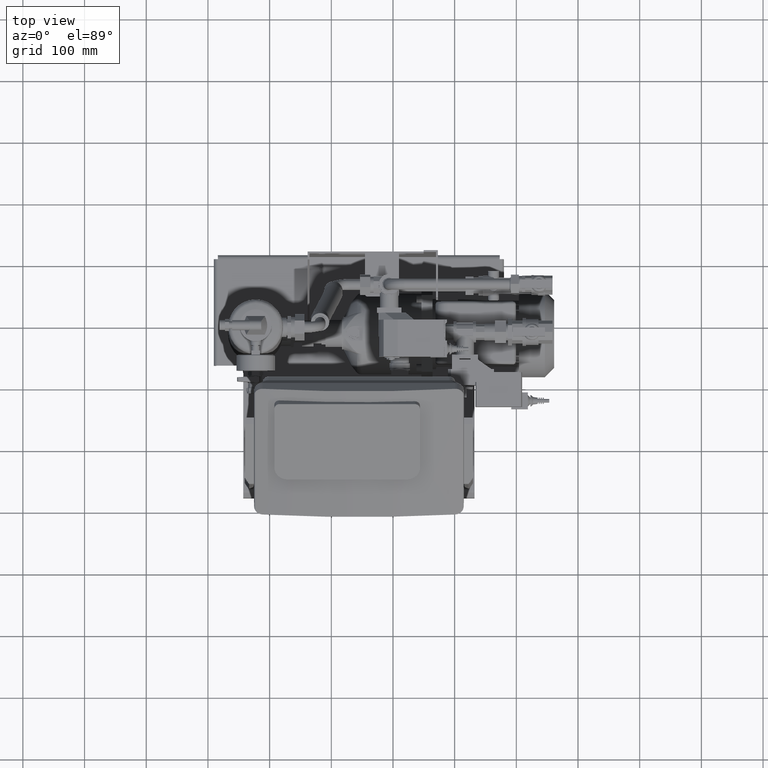
[diagram: clean part render]
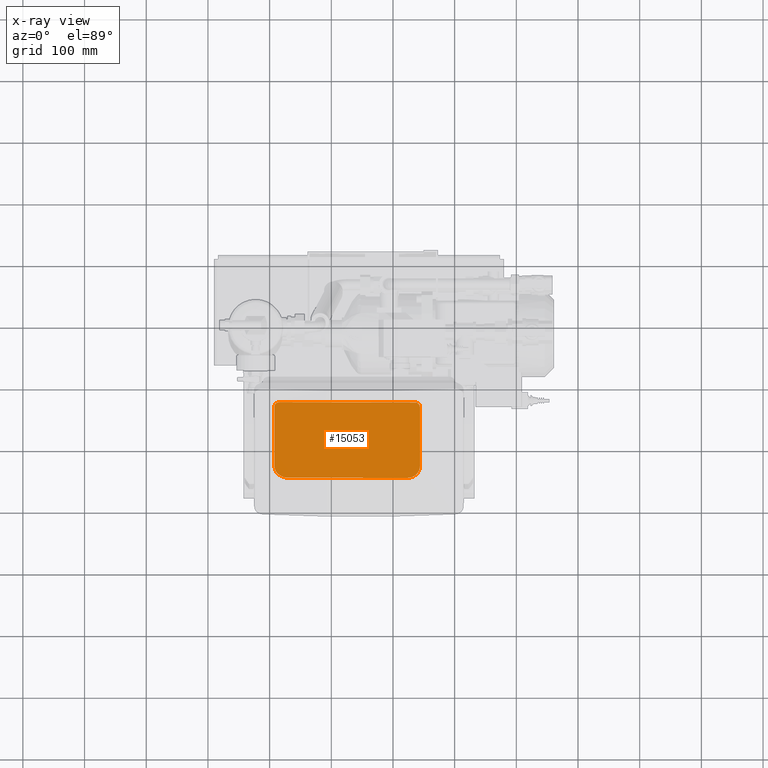
[diagram: x-ray — body ghosted, one internal face saturated and labeled with its STEP entity id]
A machine part, top view, then the same camera in x-ray: the body is ghosted and one INTERNAL B-rep face — a face not visible from any outside direction — is saturated and labeled: STEP entity #15053.
In plain terms, the highlighted planar face has unit normal (0.0066, 0.5, -0.866).
Its self-contained STEP definition (entity closure, byte-faithful):
#14978=CARTESIAN_POINT('',(44.532698356409199,-218.84142560913361,620.9296278255465));
#14979=DIRECTION('',(0.006563574690845,0.49998922975582,-0.866006749174312));
#14980=DIRECTION('',(0.999978459511643,-0.003281787345423,0.005684222421909));
#14981=AXIS2_PLACEMENT_3D('',#14978,#14979,#14980);
#14982=PLANE('',#14981);
#14983=CARTESIAN_POINT('',(122.24335258335437,-253.73747709574346,601.37136198389396));
#14984=VERTEX_POINT('',#14983);
#14985=CARTESIAN_POINT('',(143.74335258335435,-235.18849086220033,612.24357539850166));
#14986=VERTEX_POINT('',#14985);
#14987=CARTESIAN_POINT('',(122.24335258335437,-235.11793091437804,612.12136198389396));
#14988=DIRECTION('',(-0.006563574690845,-0.49998922975582,0.866006749174312));
#14989=DIRECTION('',(0.999978459511643,-0.003281787345423,0.005684222421908));
#14990=AXIS2_PLACEMENT_3D('',#14987,#14988,#14989);
#14991=ELLIPSE('',#14990,21.500463130475747,21.500000000000007);
#14992=EDGE_CURVE('',#14984,#14986,#14991,.T.);
#14993=ORIENTED_EDGE('',*,*,#14992,.T.);
#14994=CARTESIAN_POINT('',(143.74335258335435,-139.92569644591188,667.24357539850155));
#14995=VERTEX_POINT('',#14994);
#14996=CARTESIAN_POINT('',(143.74335258335435,-235.1884908622003,612.24357539850166));
#14997=DIRECTION('',(2.583792E-016,0.866025403784439,0.499999999999999));
#14998=VECTOR('',#14997,110.00000000000006);
#14999=LINE('',#14996,#14998);
#15000=EDGE_CURVE('',#14986,#14995,#14999,.T.);
#15001=ORIENTED_EDGE('',*,*,#15000,.T.);
#15002=CARTESIAN_POINT('',(135.24335258335435,-132.53658472041914,671.44525846714498));
#15003=VERTEX_POINT('',#15002);
#15004=CARTESIAN_POINT('',(135.24335258335435,-139.89780065258688,667.19525846714498));
#15005=DIRECTION('',(-0.006563574690845,-0.49998922975582,0.866006749174312));
#15006=DIRECTION('',(0.999978459511643,-0.003281787345426,0.005684222421907));
#15007=AXIS2_PLACEMENT_3D('',#15004,#15005,#15006);
#15008=ELLIPSE('',#15007,8.500183098095031,8.49999999999997);
#15009=EDGE_CURVE('',#14995,#15003,#15008,.T.);
#15010=ORIENTED_EDGE('',*,*,#15009,.T.);
#15011=CARTESIAN_POINT('',(-83.756647416645635,-131.81785781004285,670.20038694160644));
#15012=VERTEX_POINT('',#15011);
#15013=CARTESIAN_POINT('',(135.24335258335435,-132.53658472041911,671.44525846714498));
#15014=DIRECTION('',(-0.999978459511643,0.003281787345423,-0.005684222421908));
#15015=VECTOR('',#15014,219.00471746856687);
#15016=LINE('',#15013,#15015);
#15017=EDGE_CURVE('',#15003,#15012,#15016,.T.);
#15018=ORIENTED_EDGE('',*,*,#15017,.T.);
#15019=CARTESIAN_POINT('',(-92.256647416645578,-139.15117794888548,665.90207001024999));
#15020=VERTEX_POINT('',#15019);
#15021=CARTESIAN_POINT('',(-83.756647416645635,-139.17907374221059,665.95038694160644));
#15022=DIRECTION('',(-0.006563574690845,-0.49998922975582,0.866006749174312));
#15023=DIRECTION('',(-0.999978459511643,0.003281787345423,-0.005684222421908));
#15024=AXIS2_PLACEMENT_3D('',#15021,#15022,#15023);
#15025=ELLIPSE('',#15024,8.500183098095077,8.500000000000016);
#15026=EDGE_CURVE('',#15012,#15020,#15025,.T.);
#15027=ORIENTED_EDGE('',*,*,#15026,.T.);
#15028=CARTESIAN_POINT('',(-92.256647416645748,-234.41397236517381,610.9020700102501));
#15029=VERTEX_POINT('',#15028);
#15030=CARTESIAN_POINT('',(-92.256647416645606,-139.15117794888545,665.90207001024999));
#15031=DIRECTION('',(-5.167584E-016,-0.866025403784439,-0.499999999999999));
#15032=VECTOR('',#15031,110.00000000000001);
#15033=LINE('',#15030,#15032);
#15034=EDGE_CURVE('',#15020,#15029,#15033,.T.);
#15035=ORIENTED_EDGE('',*,*,#15034,.T.);
#15036=CARTESIAN_POINT('',(-70.756647416645862,-253.10407849436163,600.2742834248578));
#15037=VERTEX_POINT('',#15036);
#15038=CARTESIAN_POINT('',(-70.756647416645635,-234.48453231299609,611.02428342485769));
#15039=DIRECTION('',(-0.006563574690845,-0.49998922975582,0.866006749174312));
#15040=DIRECTION('',(-0.999978459511643,0.003281787345422,-0.005684222421909));
#15041=AXIS2_PLACEMENT_3D('',#15038,#15039,#15040);
#15042=ELLIPSE('',#15041,21.500463130475762,21.500000000000018);
#15043=EDGE_CURVE('',#15029,#15037,#15042,.T.);
#15044=ORIENTED_EDGE('',*,*,#15043,.T.);
#15045=CARTESIAN_POINT('',(-70.756647416645876,-253.10407849436157,600.2742834248578));
#15046=DIRECTION('',(0.999978459511643,-0.003281787345423,0.005684222421909));
#15047=VECTOR('',#15046,193.00415740380572);
#15048=LINE('',#15045,#15047);
#15049=EDGE_CURVE('',#15037,#14984,#15048,.T.);
#15050=ORIENTED_EDGE('',*,*,#15049,.T.);
#15051=EDGE_LOOP('',(#14993,#15001,#15010,#15018,#15027,#15035,#15044,#15050));
#15052=FACE_OUTER_BOUND('',#15051,.T.);
#15053=ADVANCED_FACE('',(#15052),#14982,.F.);